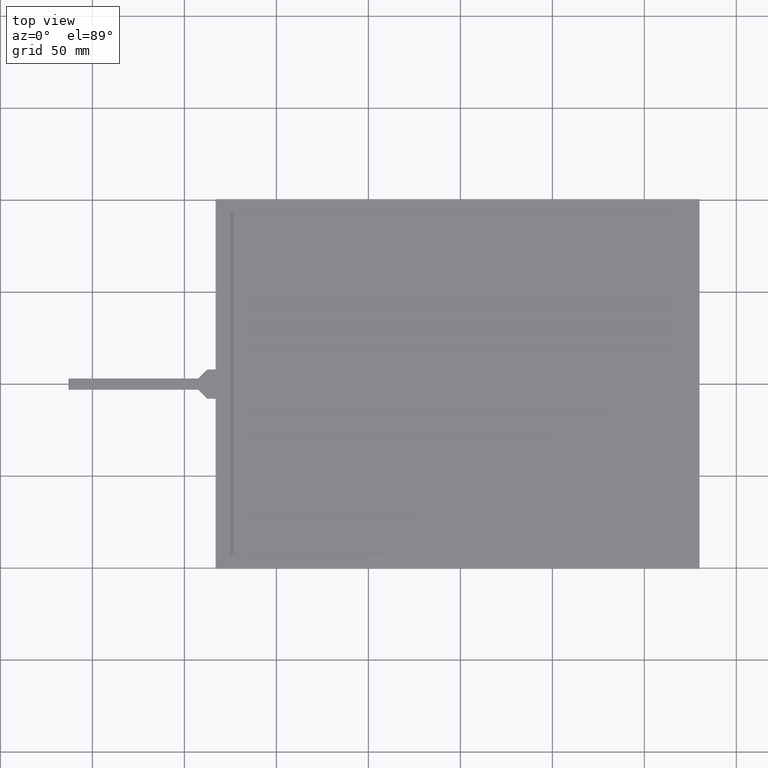
[diagram: clean part render]
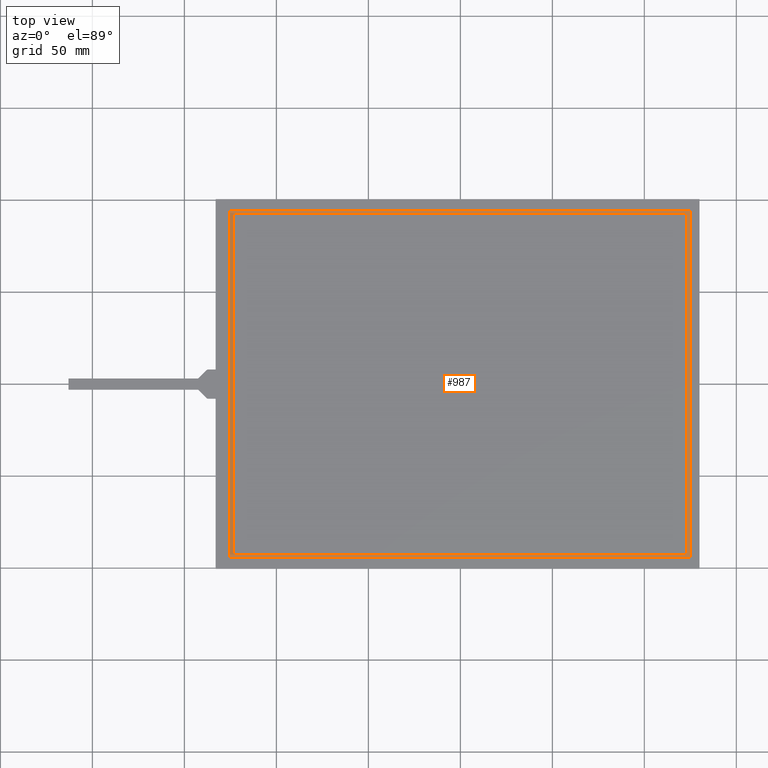
[diagram: same view with one face highlighted and labeled with its STEP entity id]
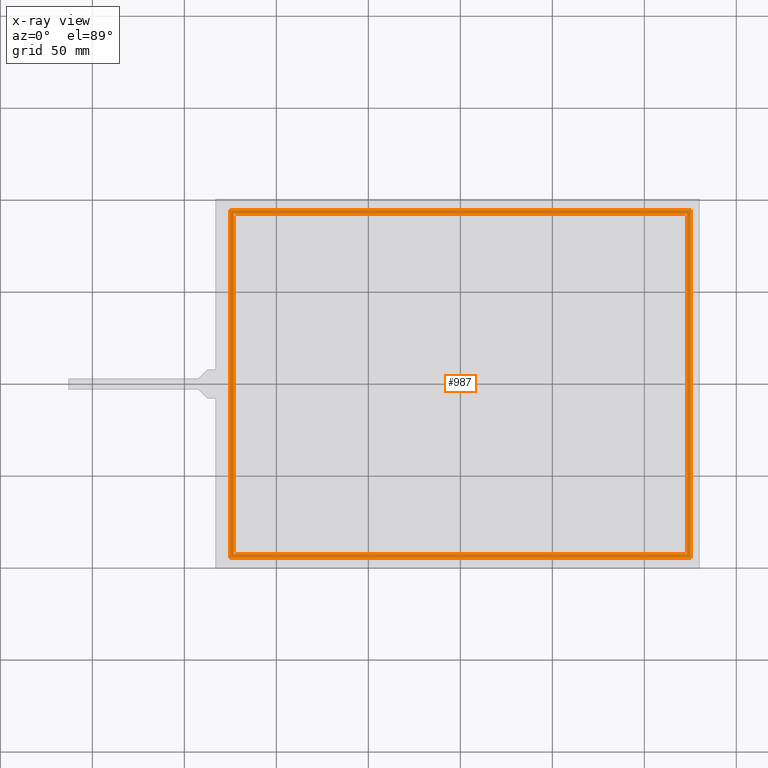
[diagram: x-ray of the same camera — body ghosted, the highlighted face saturated]
A machine part, top view. The second image highlights one B-rep face of the part: STEP entity #987.
The next image is the same camera in x-ray: the body ghosted, the highlighted face saturated — about 0% of this face is hidden behind the body in this view.
In plain terms, the highlighted planar face has unit normal (0, 0, -1).
Its self-contained STEP definition (entity closure, byte-faithful):
#15=FACE_BOUND('',#158,.T.);
#55=PLANE('',#1070);
#106=FACE_OUTER_BOUND('',#157,.T.);
#157=EDGE_LOOP('',(#894,#895,#896,#897));
#158=EDGE_LOOP('',(#898,#899,#900,#901));
#260=LINE('',#1545,#386);
#264=LINE('',#1552,#390);
#267=LINE('',#1558,#393);
#269=LINE('',#1561,#395);
#272=LINE('',#1569,#398);
#276=LINE('',#1576,#402);
#279=LINE('',#1582,#405);
#281=LINE('',#1585,#407);
#386=VECTOR('',#1268,10.);
#390=VECTOR('',#1274,10.);
#393=VECTOR('',#1279,10.);
#395=VECTOR('',#1283,10.);
#398=VECTOR('',#1288,10.);
#402=VECTOR('',#1294,10.);
#405=VECTOR('',#1299,10.);
#407=VECTOR('',#1303,10.);
#502=VERTEX_POINT('',#1542);
#503=VERTEX_POINT('',#1544);
#505=VERTEX_POINT('',#1550);
#507=VERTEX_POINT('',#1556);
#510=VERTEX_POINT('',#1566);
#511=VERTEX_POINT('',#1568);
#513=VERTEX_POINT('',#1574);
#515=VERTEX_POINT('',#1580);
#628=EDGE_CURVE('',#502,#503,#260,.T.);
#632=EDGE_CURVE('',#505,#502,#264,.T.);
#635=EDGE_CURVE('',#507,#505,#267,.T.);
#637=EDGE_CURVE('',#503,#507,#269,.T.);
#640=EDGE_CURVE('',#510,#511,#272,.T.);
#644=EDGE_CURVE('',#513,#510,#276,.T.);
#647=EDGE_CURVE('',#515,#513,#279,.T.);
#649=EDGE_CURVE('',#511,#515,#281,.T.);
#894=ORIENTED_EDGE('',*,*,#649,.F.);
#895=ORIENTED_EDGE('',*,*,#640,.F.);
#896=ORIENTED_EDGE('',*,*,#644,.F.);
#897=ORIENTED_EDGE('',*,*,#647,.F.);
#898=ORIENTED_EDGE('',*,*,#637,.F.);
#899=ORIENTED_EDGE('',*,*,#628,.F.);
#900=ORIENTED_EDGE('',*,*,#632,.F.);
#901=ORIENTED_EDGE('',*,*,#635,.F.);
#987=ADVANCED_FACE('',(#106,#15),#55,.F.);
#1070=AXIS2_PLACEMENT_3D('',#1586,#1304,#1305);
#1268=DIRECTION('',(1.,0.,0.));
#1274=DIRECTION('',(0.,-1.,0.));
#1279=DIRECTION('',(-1.,0.,0.));
#1283=DIRECTION('',(0.,1.,0.));
#1288=DIRECTION('',(-1.87974268719603E-16,1.,0.));
#1294=DIRECTION('',(-1.,-1.41824897357305E-16,0.));
#1299=DIRECTION('',(1.87974268719603E-16,-1.,0.));
#1303=DIRECTION('',(1.,0.,0.));
#1304=DIRECTION('center_axis',(0.,0.,-1.));
#1305=DIRECTION('ref_axis',(-1.,0.,0.));
#1542=CARTESIAN_POINT('',(-123.25,-92.5,-0.1));
#1544=CARTESIAN_POINT('',(123.25,-92.5,-0.1));
#1545=CARTESIAN_POINT('',(123.25,-92.5,-0.1));
#1550=CARTESIAN_POINT('',(-123.25,92.5,-0.1));
#1552=CARTESIAN_POINT('',(-123.25,-92.5,-0.1));
#1556=CARTESIAN_POINT('',(123.25,92.5,-0.1));
#1558=CARTESIAN_POINT('',(-123.25,92.5,-0.1));
#1561=CARTESIAN_POINT('',(123.25,92.5,-0.1));
#1566=CARTESIAN_POINT('',(-125.25,-94.5,-0.1));
#1568=CARTESIAN_POINT('',(-125.25,94.5,-0.1));
#1569=CARTESIAN_POINT('',(-125.25,94.5,-0.1));
#1574=CARTESIAN_POINT('',(125.25,-94.5,-0.1));
#1576=CARTESIAN_POINT('',(-125.25,-94.5,-0.1));
#1580=CARTESIAN_POINT('',(125.25,94.5,-0.1));
#1582=CARTESIAN_POINT('',(125.25,-94.5,-0.1));
#1585=CARTESIAN_POINT('',(125.25,94.5,-0.1));
#1586=CARTESIAN_POINT('Origin',(-1.77635683940025E-14,1.77635683940025E-14,
-0.1));